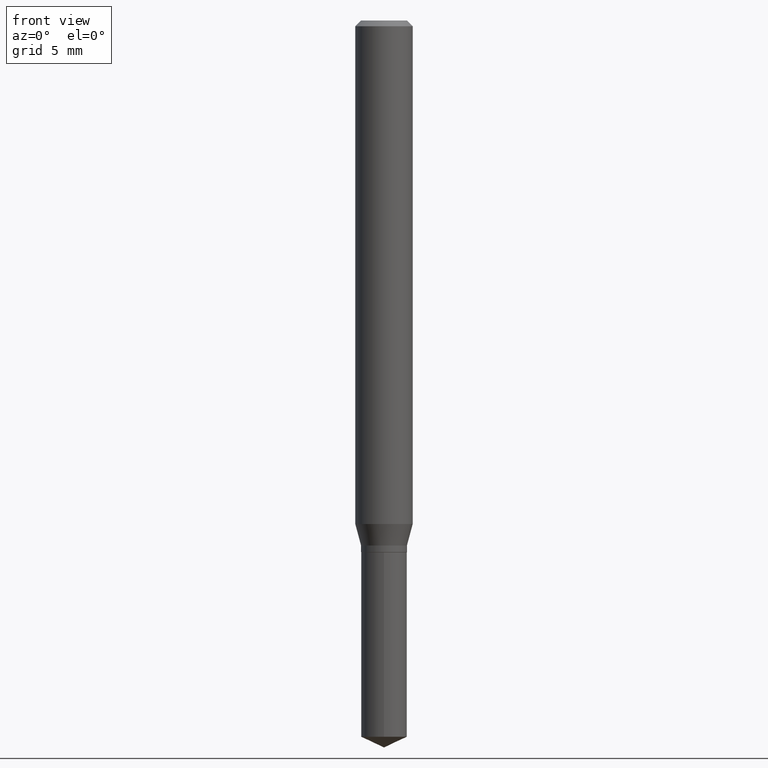
[diagram: clean part render]
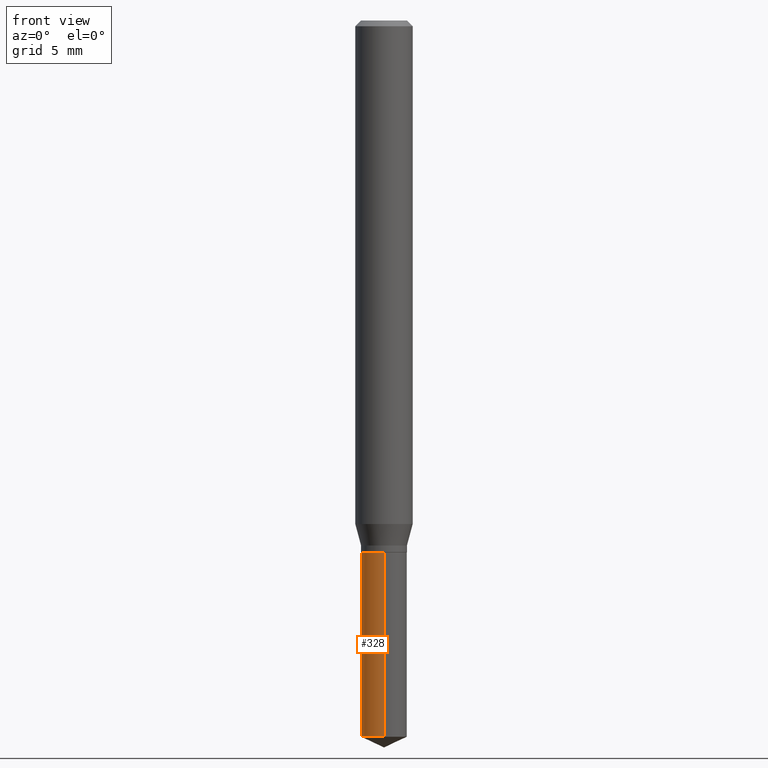
[diagram: same view with one face highlighted and labeled with its STEP entity id]
A machine part, front view. The second image highlights one B-rep face of the part: STEP entity #328.
In plain terms, the highlighted cylindrical surface (edge-blend (fillet) strip) has radius 1.2001 mm, axis along (-0, 0, 1).
Its self-contained STEP definition (entity closure, byte-faithful):
#17 = ORIENTED_EDGE ( 'NONE', *, *, #199, .T. ) ;
#18 = AXIS2_PLACEMENT_3D ( 'NONE', #314, #68, #241 ) ;
#23 = CARTESIAN_POINT ( 'NONE',  ( 3.357314426466833320E-16, 0.04724999999999617006, -1.094500000000000028 ) ) ;
#28 = VERTEX_POINT ( 'NONE', #413 ) ;
#33 = CARTESIAN_POINT ( 'NONE',  ( 2.676565608369631794E-29, -3.821426325363822773E-15, -1.094499999999999806 ) ) ;
#38 = CARTESIAN_POINT ( 'NONE',  ( -3.299449865206398677E-16, -0.04725000000000512818, -1.474066963152176113 ) ) ;
#68 = DIRECTION ( 'NONE',  ( -2.445358326776455510E-29, 3.491639551644474585E-15, 1.000000000000000000 ) ) ;
#86 = DIRECTION ( 'NONE',  ( -2.445358326776455510E-29, 3.491639551644474585E-15, 1.000000000000000000 ) ) ;
#91 = ORIENTED_EDGE ( 'NONE', *, *, #489, .F. ) ;
#96 = VERTEX_POINT ( 'NONE', #23 ) ;
#118 = DIRECTION ( 'NONE',  ( -2.445358326776455790E-29, 3.491639551644474585E-15, 1.000000000000000000 ) ) ;
#124 = CARTESIAN_POINT ( 'NONE',  ( -3.299449865206492354E-16, -0.04725000000000382366, -1.094499999999999806 ) ) ;
#126 = DIRECTION ( 'NONE',  ( -6.982962677686265922E-15, -1.000000000000000000, 2.890844437739961472E-15 ) ) ;
#162 = FACE_OUTER_BOUND ( 'NONE', #486, .T. ) ;
#169 = CARTESIAN_POINT ( 'NONE',  ( 2.676565608369631794E-29, -3.821426325363822773E-15, -1.094499999999999806 ) ) ;
#176 = CIRCLE ( 'NONE', #316, 0.04724999999999999339 ) ;
#199 = EDGE_CURVE ( 'NONE', #28, #475, #445, .T. ) ;
#212 = DIRECTION ( 'NONE',  ( -2.445358326776455790E-29, 3.491639551644474585E-15, 1.000000000000000000 ) ) ;
#224 = ORIENTED_EDGE ( 'NONE', *, *, #275, .F. ) ;
#241 = DIRECTION ( 'NONE',  ( -6.982962677686265922E-15, -1.000000000000000000, 5.781688875479922944E-15 ) ) ;
#275 = EDGE_CURVE ( 'NONE', #96, #421, #176, .T. ) ;
#282 = LINE ( 'NONE', #356, #426 ) ;
#307 = ORIENTED_EDGE ( 'NONE', *, *, #321, .T. ) ;
#313 = CARTESIAN_POINT ( 'NONE',  ( 3.357314426466740136E-16, 0.04724999999999617006, -1.094500000000000028 ) ) ;
#314 = CARTESIAN_POINT ( 'NONE',  ( 3.604742842283059142E-29, -5.146737346403543071E-15, -1.474066963152176557 ) ) ;
#316 = AXIS2_PLACEMENT_3D ( 'NONE', #33, #349, #458 ) ;
#321 = EDGE_CURVE ( 'NONE', #475, #421, #282, .T. ) ;
#328 = ADVANCED_FACE ( 'NONE', ( #162 ), #358, .T. ) ;
#349 = DIRECTION ( 'NONE',  ( -2.445358326776455510E-29, 3.491639551644474585E-15, 1.000000000000000000 ) ) ;
#356 = CARTESIAN_POINT ( 'NONE',  ( -3.299449865206492354E-16, -0.04725000000000382366, -1.094499999999999806 ) ) ;
#358 = CYLINDRICAL_SURFACE ( 'NONE', #380, 0.04724999999999999339 ) ;
#380 = AXIS2_PLACEMENT_3D ( 'NONE', #169, #86, #126 ) ;
#413 = CARTESIAN_POINT ( 'NONE',  ( 3.357314426466831841E-16, 0.04724999999999483086, -1.474066963152176779 ) ) ;
#421 = VERTEX_POINT ( 'NONE', #124 ) ;
#426 = VECTOR ( 'NONE', #212, 39.37007874015748143 ) ;
#445 = CIRCLE ( 'NONE', #18, 0.04724999999999999339 ) ;
#451 = LINE ( 'NONE', #313, #467 ) ;
#458 = DIRECTION ( 'NONE',  ( -6.982962677686265922E-15, -1.000000000000000000, 2.890844437739961472E-15 ) ) ;
#467 = VECTOR ( 'NONE', #118, 39.37007874015748143 ) ;
#475 = VERTEX_POINT ( 'NONE', #38 ) ;
#486 = EDGE_LOOP ( 'NONE', ( #91, #17, #307, #224 ) ) ;
#489 = EDGE_CURVE ( 'NONE', #28, #96, #451, .T. ) ;